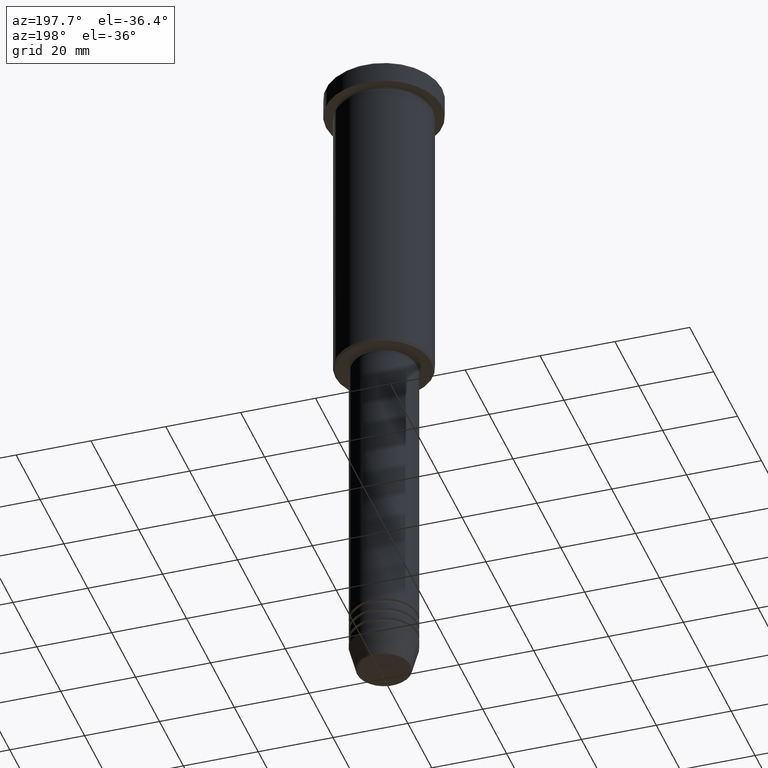
[diagram: clean part render]
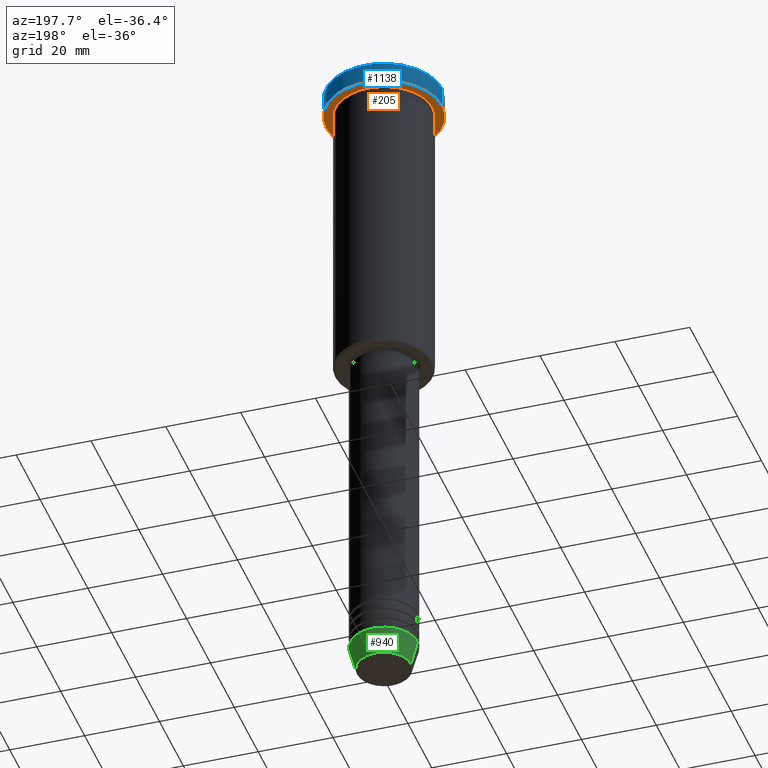
[diagram: same view with three faces highlighted in distinct colors, each labeled with its STEP entity id]
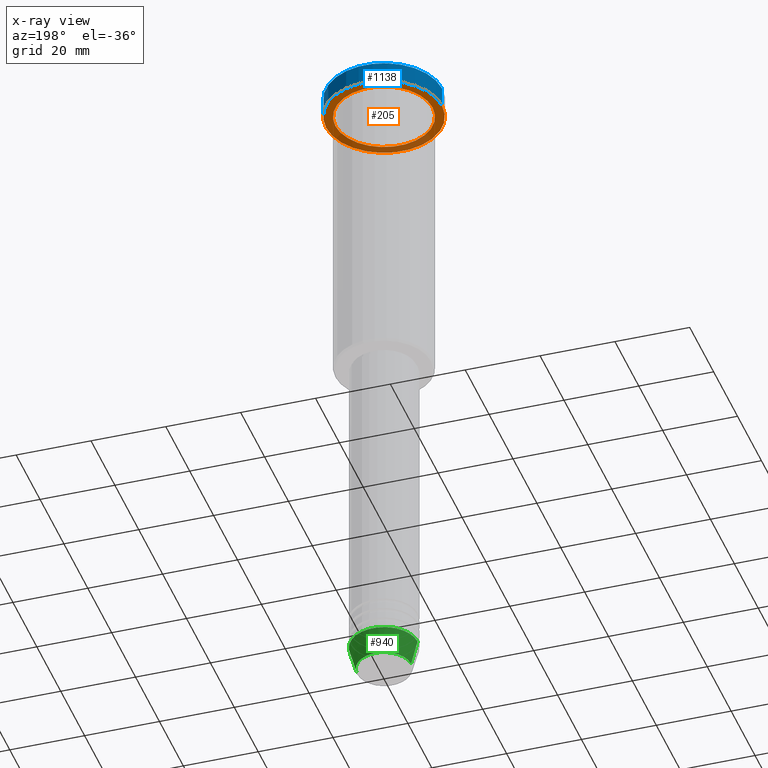
[diagram: x-ray of the same camera — body ghosted, the three highlighted faces saturated]
A machine part, auxiliary view with three faces highlighted in distinct colors.
The next image is the same camera in x-ray (body ghosted, the three faces saturated) — at least one of them is partly hidden behind the body in this view.
Their STEP definitions:

[orange] entity #205 — the highlighted planar face has unit normal (0, 0, -1).
#1 = FACE_BOUND ( 'NONE', #742, .T. ) ;
#26 = CARTESIAN_POINT ( 'NONE',  ( 0.000000000000000000, 0.000000000000000000, -5.999999999999995559 ) ) ;
#28 = CARTESIAN_POINT ( 'NONE',  ( 0.000000000000000000, 15.50000000000000000, -5.999999999999995559 ) ) ;
#47 = AXIS2_PLACEMENT_3D ( 'NONE', #260, #809, #822 ) ;
#60 = ORIENTED_EDGE ( 'NONE', *, *, #456, .F. ) ;
#84 = AXIS2_PLACEMENT_3D ( 'NONE', #28, #646, #1095 ) ;
#146 = ORIENTED_EDGE ( 'NONE', *, *, #774, .T. ) ;
#184 = FACE_OUTER_BOUND ( 'NONE', #211, .T. ) ;
#186 = EDGE_CURVE ( 'NONE', #883, #316, #781, .T. ) ;
#196 = CARTESIAN_POINT ( 'NONE',  ( -13.00000000000000000, 0.000000000000000000, -5.999999999999994671 ) ) ;
#205 = ADVANCED_FACE ( 'NONE', ( #1, #184 ), #750, .T. ) ;
#211 = EDGE_LOOP ( 'NONE', ( #226, #60 ) ) ;
#226 = ORIENTED_EDGE ( 'NONE', *, *, #186, .F. ) ;
#239 = CARTESIAN_POINT ( 'NONE',  ( -15.50000000000000000, 1.898202538678397557E-15, -5.999999999999995559 ) ) ;
#260 = CARTESIAN_POINT ( 'NONE',  ( 0.000000000000000000, 0.000000000000000000, -5.999999999999995559 ) ) ;
#280 = CARTESIAN_POINT ( 'NONE',  ( 0.000000000000000000, 0.000000000000000000, -5.999999999999995559 ) ) ;
#316 = VERTEX_POINT ( 'NONE', #239 ) ;
#356 = CIRCLE ( 'NONE', #965, 15.50000000000000000 ) ;
#379 = CIRCLE ( 'NONE', #1055, 13.00000000000000000 ) ;
#456 = EDGE_CURVE ( 'NONE', #316, #883, #356, .T. ) ;
#481 = DIRECTION ( 'NONE',  ( -1.000000000000000000, 0.000000000000000000, 0.000000000000000000 ) ) ;
#556 = EDGE_CURVE ( 'NONE', #939, #1159, #886, .T. ) ;
#639 = DIRECTION ( 'NONE',  ( 1.000000000000000000, 0.000000000000000000, 0.000000000000000000 ) ) ;
#646 = DIRECTION ( 'NONE',  ( 0.000000000000000000, 0.000000000000000000, -1.000000000000000000 ) ) ;
#700 = CARTESIAN_POINT ( 'NONE',  ( 13.00000000000000000, 1.592040838891559095E-15, -5.999999999999994671 ) ) ;
#701 = DIRECTION ( 'NONE',  ( -1.000000000000000000, 0.000000000000000000, 0.000000000000000000 ) ) ;
#742 = EDGE_LOOP ( 'NONE', ( #920, #146 ) ) ;
#750 = PLANE ( 'NONE',  #84 ) ;
#774 = EDGE_CURVE ( 'NONE', #1159, #939, #379, .T. ) ;
#781 = CIRCLE ( 'NONE', #47, 15.50000000000000000 ) ;
#809 = DIRECTION ( 'NONE',  ( -0.000000000000000000, -0.000000000000000000, 1.000000000000000000 ) ) ;
#822 = DIRECTION ( 'NONE',  ( 1.000000000000000000, 0.000000000000000000, 0.000000000000000000 ) ) ;
#883 = VERTEX_POINT ( 'NONE', #1147 ) ;
#886 = CIRCLE ( 'NONE', #1005, 13.00000000000000000 ) ;
#920 = ORIENTED_EDGE ( 'NONE', *, *, #556, .T. ) ;
#932 = DIRECTION ( 'NONE',  ( -0.000000000000000000, -0.000000000000000000, 1.000000000000000000 ) ) ;
#939 = VERTEX_POINT ( 'NONE', #196 ) ;
#941 = DIRECTION ( 'NONE',  ( -0.000000000000000000, -0.000000000000000000, 1.000000000000000000 ) ) ;
#965 = AXIS2_PLACEMENT_3D ( 'NONE', #26, #941, #639 ) ;
#1001 = CARTESIAN_POINT ( 'NONE',  ( 0.000000000000000000, 0.000000000000000000, -5.999999999999995559 ) ) ;
#1005 = AXIS2_PLACEMENT_3D ( 'NONE', #280, #932, #481 ) ;
#1055 = AXIS2_PLACEMENT_3D ( 'NONE', #1001, #1079, #701 ) ;
#1079 = DIRECTION ( 'NONE',  ( -0.000000000000000000, -0.000000000000000000, 1.000000000000000000 ) ) ;
#1095 = DIRECTION ( 'NONE',  ( -1.000000000000000000, 0.000000000000000000, -0.000000000000000000 ) ) ;
#1147 = CARTESIAN_POINT ( 'NONE',  ( 15.50000000000000000, 0.000000000000000000, -5.999999999999995559 ) ) ;
#1159 = VERTEX_POINT ( 'NONE', #700 ) ;

[blue] entity #1138 — the highlighted cylindrical surface (partial cylindrical patch) has radius 15.5 mm, axis along (-0, -0, 1).
#11 = AXIS2_PLACEMENT_3D ( 'NONE', #1065, #233, #988 ) ;
#47 = AXIS2_PLACEMENT_3D ( 'NONE', #260, #809, #822 ) ;
#98 = ORIENTED_EDGE ( 'NONE', *, *, #321, .F. ) ;
#102 = CIRCLE ( 'NONE', #1088, 15.50000000000000000 ) ;
#186 = EDGE_CURVE ( 'NONE', #883, #316, #781, .T. ) ;
#189 = DIRECTION ( 'NONE',  ( -0.000000000000000000, -0.000000000000000000, 1.000000000000000000 ) ) ;
#233 = DIRECTION ( 'NONE',  ( -0.000000000000000000, -0.000000000000000000, 1.000000000000000000 ) ) ;
#239 = CARTESIAN_POINT ( 'NONE',  ( -15.50000000000000000, 1.898202538678397557E-15, -5.999999999999995559 ) ) ;
#241 = CARTESIAN_POINT ( 'NONE',  ( 15.50000000000000000, 0.000000000000000000, -0.5000000000000125455 ) ) ;
#260 = CARTESIAN_POINT ( 'NONE',  ( 0.000000000000000000, 0.000000000000000000, -5.999999999999995559 ) ) ;
#286 = DIRECTION ( 'NONE',  ( 0.000000000000000000, 0.000000000000000000, -1.000000000000000000 ) ) ;
#316 = VERTEX_POINT ( 'NONE', #239 ) ;
#321 = EDGE_CURVE ( 'NONE', #883, #761, #522, .T. ) ;
#326 = FACE_OUTER_BOUND ( 'NONE', #478, .T. ) ;
#381 = CARTESIAN_POINT ( 'NONE',  ( 0.000000000000000000, 0.000000000000000000, -0.5000000000000125455 ) ) ;
#390 = ORIENTED_EDGE ( 'NONE', *, *, #504, .T. ) ;
#401 = ORIENTED_EDGE ( 'NONE', *, *, #496, .T. ) ;
#417 = VERTEX_POINT ( 'NONE', #1164 ) ;
#478 = EDGE_LOOP ( 'NONE', ( #991, #390, #401, #98 ) ) ;
#496 = EDGE_CURVE ( 'NONE', #417, #761, #102, .T. ) ;
#504 = EDGE_CURVE ( 'NONE', #316, #417, #1020, .T. ) ;
#522 = LINE ( 'NONE', #1163, #541 ) ;
#541 = VECTOR ( 'NONE', #714, 1000.000000000000000 ) ;
#693 = CYLINDRICAL_SURFACE ( 'NONE', #11, 15.50000000000000000 ) ;
#714 = DIRECTION ( 'NONE',  ( -0.000000000000000000, -0.000000000000000000, 1.000000000000000000 ) ) ;
#761 = VERTEX_POINT ( 'NONE', #241 ) ;
#781 = CIRCLE ( 'NONE', #47, 15.50000000000000000 ) ;
#809 = DIRECTION ( 'NONE',  ( -0.000000000000000000, -0.000000000000000000, 1.000000000000000000 ) ) ;
#822 = DIRECTION ( 'NONE',  ( 1.000000000000000000, 0.000000000000000000, 0.000000000000000000 ) ) ;
#845 = CARTESIAN_POINT ( 'NONE',  ( -15.50000000000000000, 1.898202538678397557E-15, 0.000000000000000000 ) ) ;
#874 = VECTOR ( 'NONE', #189, 1000.000000000000000 ) ;
#883 = VERTEX_POINT ( 'NONE', #1147 ) ;
#988 = DIRECTION ( 'NONE',  ( 1.000000000000000000, 0.000000000000000000, 0.000000000000000000 ) ) ;
#991 = ORIENTED_EDGE ( 'NONE', *, *, #186, .T. ) ;
#1020 = LINE ( 'NONE', #845, #874 ) ;
#1065 = CARTESIAN_POINT ( 'NONE',  ( 0.000000000000000000, 0.000000000000000000, 0.000000000000000000 ) ) ;
#1088 = AXIS2_PLACEMENT_3D ( 'NONE', #381, #286, #1182 ) ;
#1138 = ADVANCED_FACE ( 'NONE', ( #326 ), #693, .T. ) ;
#1147 = CARTESIAN_POINT ( 'NONE',  ( 15.50000000000000000, 0.000000000000000000, -5.999999999999995559 ) ) ;
#1163 = CARTESIAN_POINT ( 'NONE',  ( 15.50000000000000000, 0.000000000000000000, 0.000000000000000000 ) ) ;
#1164 = CARTESIAN_POINT ( 'NONE',  ( -15.50000000000000000, 1.898202538678397557E-15, -0.5000000000000125455 ) ) ;
#1182 = DIRECTION ( 'NONE',  ( 1.000000000000000000, 0.000000000000000000, 0.000000000000000000 ) ) ;

[green] entity #940 — the highlighted conical surface has half-angle 15 deg.
#9 = CARTESIAN_POINT ( 'NONE',  ( -9.000000000000000000, 1.102182119232617714E-15, -174.0000000000000284 ) ) ;
#48 = CIRCLE ( 'NONE', #475, 9.000000000000000000 ) ;
#49 = AXIS2_PLACEMENT_3D ( 'NONE', #368, #172, #93 ) ;
#69 = VERTEX_POINT ( 'NONE', #380 ) ;
#93 = DIRECTION ( 'NONE',  ( 1.000000000000000000, 0.000000000000000000, 0.000000000000000000 ) ) ;
#100 = AXIS2_PLACEMENT_3D ( 'NONE', #1100, #191, #835 ) ;
#145 = LINE ( 'NONE', #434, #981 ) ;
#172 = DIRECTION ( 'NONE',  ( -0.000000000000000000, -0.000000000000000000, 1.000000000000000000 ) ) ;
#183 = CARTESIAN_POINT ( 'NONE',  ( -9.000000000000000000, 1.102182119232617714E-15, -174.0000000000000284 ) ) ;
#191 = DIRECTION ( 'NONE',  ( -0.000000000000000000, -0.000000000000000000, 1.000000000000000000 ) ) ;
#208 = ORIENTED_EDGE ( 'NONE', *, *, #999, .T. ) ;
#255 = EDGE_CURVE ( 'NONE', #1134, #1043, #145, .T. ) ;
#256 = VECTOR ( 'NONE', #743, 1000.000000000000000 ) ;
#279 = FACE_OUTER_BOUND ( 'NONE', #797, .T. ) ;
#296 = CIRCLE ( 'NONE', #49, 7.223655072137196598 ) ;
#368 = CARTESIAN_POINT ( 'NONE',  ( 0.000000000000000000, 0.000000000000000000, -180.6294095225512706 ) ) ;
#380 = CARTESIAN_POINT ( 'NONE',  ( -7.223655072137197486, 9.934123627281769054E-16, -180.6294095225512706 ) ) ;
#408 = ORIENTED_EDGE ( 'NONE', *, *, #255, .F. ) ;
#434 = CARTESIAN_POINT ( 'NONE',  ( 9.000000000000000000, 0.000000000000000000, -174.0000000000000284 ) ) ;
#439 = DIRECTION ( 'NONE',  ( 0.2588190451025213501, 0.000000000000000000, 0.9659258262890680902 ) ) ;
#470 = CARTESIAN_POINT ( 'NONE',  ( 0.000000000000000000, 0.000000000000000000, -174.0000000000000284 ) ) ;
#475 = AXIS2_PLACEMENT_3D ( 'NONE', #470, #635, #859 ) ;
#502 = VERTEX_POINT ( 'NONE', #183 ) ;
#575 = EDGE_CURVE ( 'NONE', #1043, #502, #48, .T. ) ;
#596 = CONICAL_SURFACE ( 'NONE', #100, 9.000000000000000000, 0.2617993877991500740 ) ;
#635 = DIRECTION ( 'NONE',  ( -0.000000000000000000, -0.000000000000000000, 1.000000000000000000 ) ) ;
#677 = CARTESIAN_POINT ( 'NONE',  ( 9.000000000000000000, 0.000000000000000000, -174.0000000000000284 ) ) ;
#743 = DIRECTION ( 'NONE',  ( -0.2588190451025213501, 3.169619151431772337E-17, 0.9659258262890680902 ) ) ;
#779 = ORIENTED_EDGE ( 'NONE', *, *, #575, .F. ) ;
#797 = EDGE_LOOP ( 'NONE', ( #1118, #208, #779, #408 ) ) ;
#824 = LINE ( 'NONE', #9, #256 ) ;
#835 = DIRECTION ( 'NONE',  ( 1.000000000000000000, 0.000000000000000000, 0.000000000000000000 ) ) ;
#859 = DIRECTION ( 'NONE',  ( 1.000000000000000000, 0.000000000000000000, 0.000000000000000000 ) ) ;
#940 = ADVANCED_FACE ( 'NONE', ( #279 ), #596, .T. ) ;
#981 = VECTOR ( 'NONE', #439, 1000.000000000000000 ) ;
#987 = EDGE_CURVE ( 'NONE', #1134, #69, #296, .T. ) ;
#999 = EDGE_CURVE ( 'NONE', #69, #502, #824, .T. ) ;
#1043 = VERTEX_POINT ( 'NONE', #677 ) ;
#1100 = CARTESIAN_POINT ( 'NONE',  ( 0.000000000000000000, 0.000000000000000000, -174.0000000000000284 ) ) ;
#1118 = ORIENTED_EDGE ( 'NONE', *, *, #987, .T. ) ;
#1134 = VERTEX_POINT ( 'NONE', #1149 ) ;
#1149 = CARTESIAN_POINT ( 'NONE',  ( 7.223655072137196598, 0.000000000000000000, -180.6294095225512706 ) ) ;